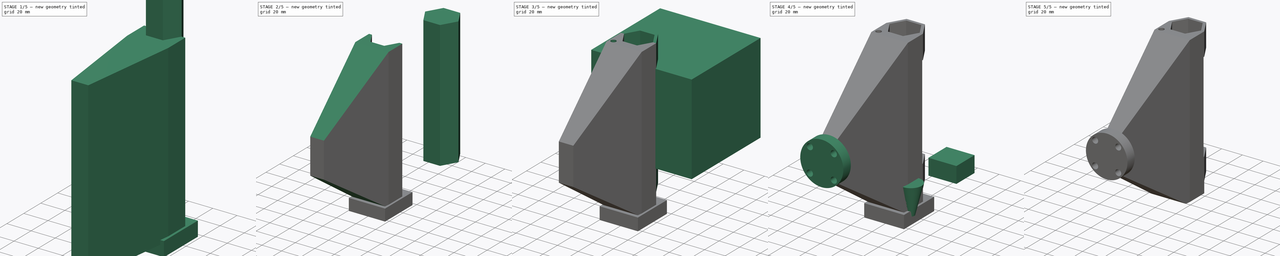
[diagram: build sequence overview — one tinted view per stage of 5, left to right]
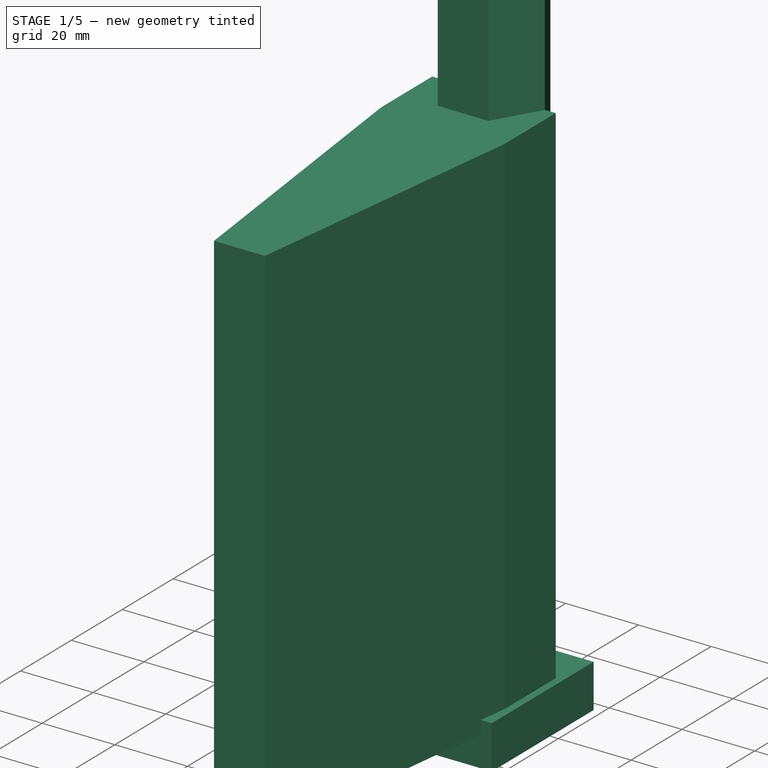
[diagram: stage 1 of 5 — iso view after this stage's code; geometry added in this stage tinted green]
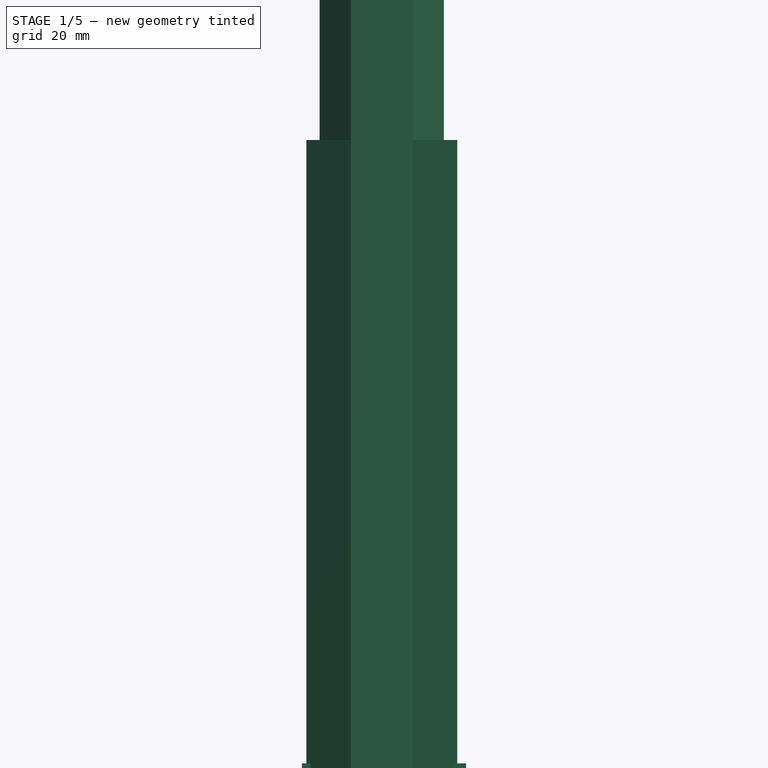
[diagram: stage 1 of 5 — front view after this stage's code; geometry added in this stage tinted green]
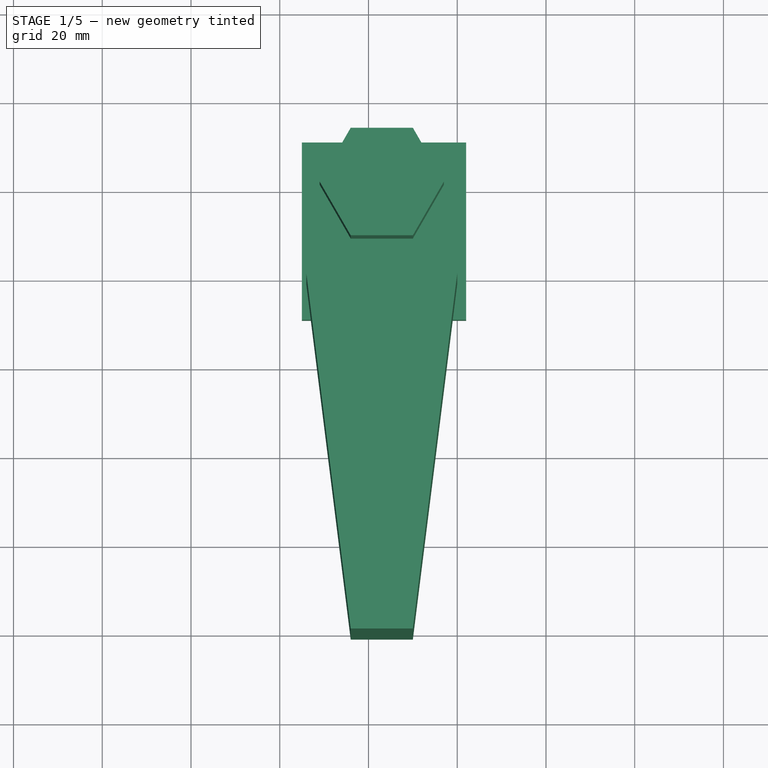
[diagram: stage 1 of 5 — top view after this stage's code; geometry added in this stage tinted green]
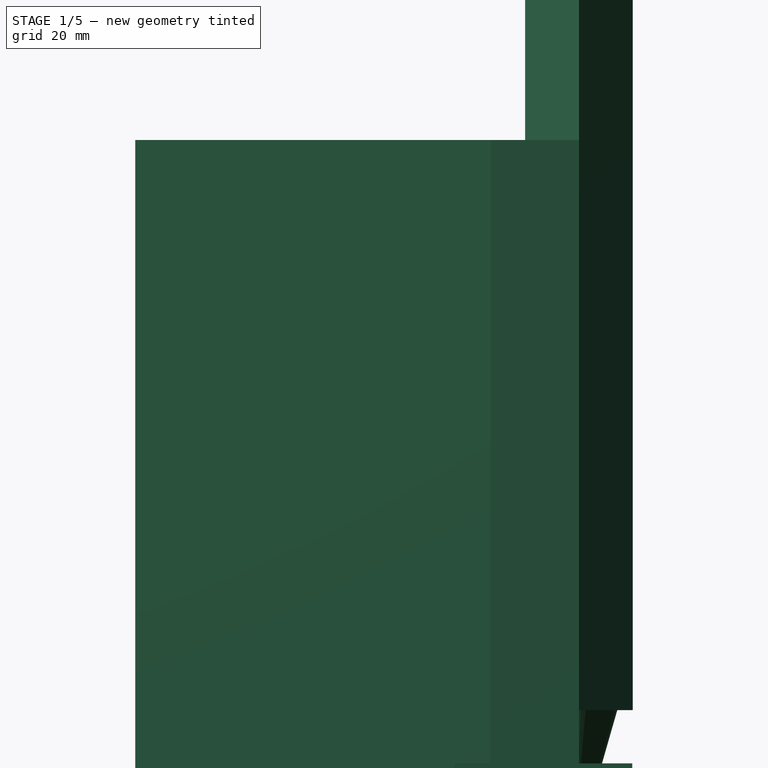
[diagram: stage 1 of 5 — right view after this stage's code; geometry added in this stage tinted green]
FCSTD DOCUMENT  (FreeCAD 0.17R13541 (Git))
Label: Herramienta Rotulador_v5
License: All rights reserved
LicenseURL: http://en.wikipedia.org/wiki/All_rights_reserved
objects: Part::Cut×8, Part::Box×4, Part::Chamfer×3, Part::Cone×3, Part::Prism×3, Part::MultiFuse×3, PartDesign::FeatureBase×1, Sketcher::SketchObject×1, PartDesign::Pocket×1, PartDesign::Body×1, Part::Cylinder×1
note: 30 computed .brp shape members not serialized (recipe doc carries the construction recipe); baked Part::Feature solids carry a one-line shape summary decoded from their .brp

FEATURE [Part::Box] Box  label="Cubo base"
  AttacherType = Attacher::AttachEngine3D
  Height = 144
  Length = 34
  Placement = pos=(-34,-61,-135.5) rot=(0,0,1;0rad)
  Width = 100
FEATURE [Part::Chamfer] Chamfer
  Base = -> Box
  Edges = 2 edges: [Edge1 r1=80 r2=10,Edge5 r1=80 r2=10]
FEATURE [Part::Prism] Prism002  label="hueco rotulador003"
  AttacherType = Attacher::AttachEngine3D
  Circumradius = 14
  Height = 171
  Placement = pos=(-17,39,-120) rot=(0,0,1;0rad)
  Polygon = 6
FEATURE [Part::Cone] Cone002  label="Punta int001"
  Angle = 360
  AttacherType = Attacher::AttachEngine3D
  Height = 27
  Placement = pos=(-17,37.5,-144) rot=(0,0,1;0rad)
  Radius1 = 3.25
  Radius2 = 11
FEATURE [Part::Box] Box003  label="Cubo002"
  AttacherType = Attacher::AttachEngine3D
  Height = 12
  Length = 37
  Placement = pos=(-35,11,-144) rot=(0,0,1;0rad)
  Width = 40
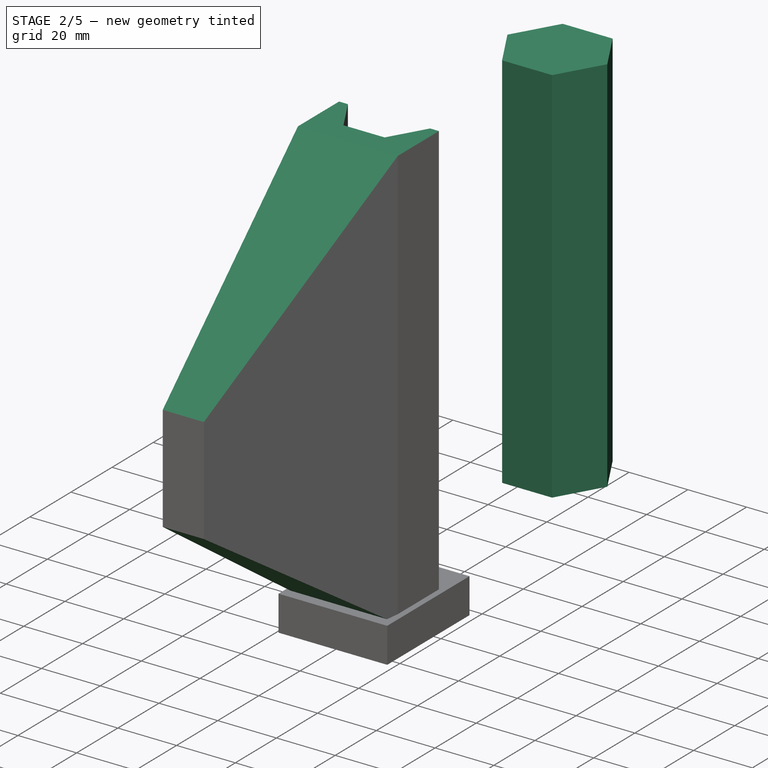
[diagram: stage 2 of 5 — iso view after this stage's code; geometry added in this stage tinted green]
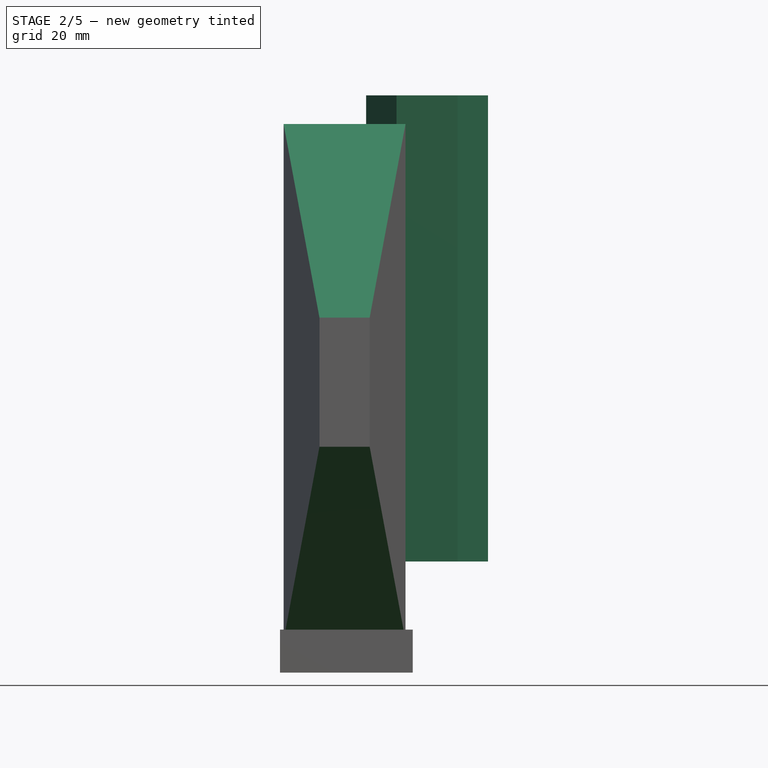
[diagram: stage 2 of 5 — front view after this stage's code; geometry added in this stage tinted green]
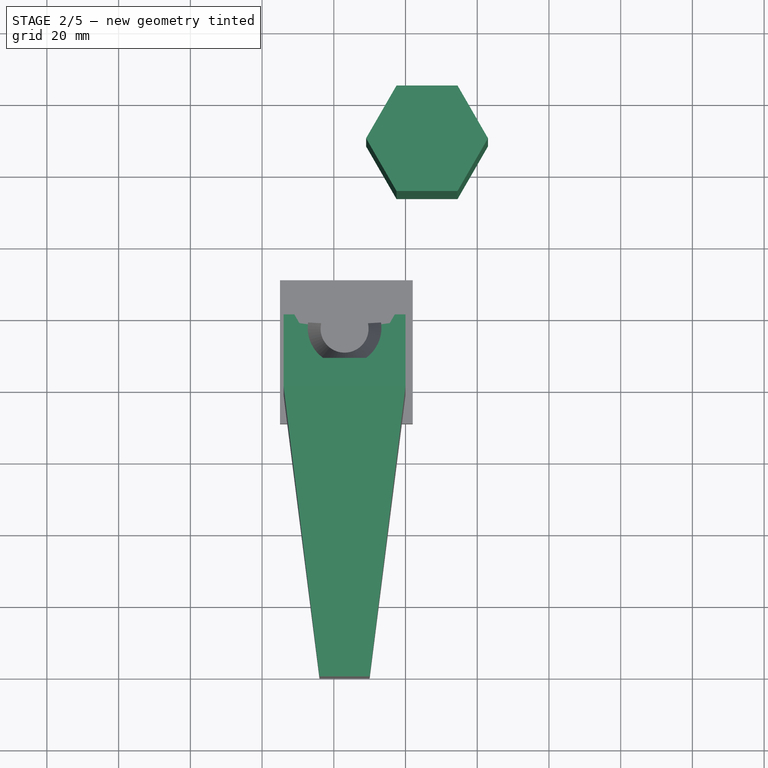
[diagram: stage 2 of 5 — top view after this stage's code; geometry added in this stage tinted green]
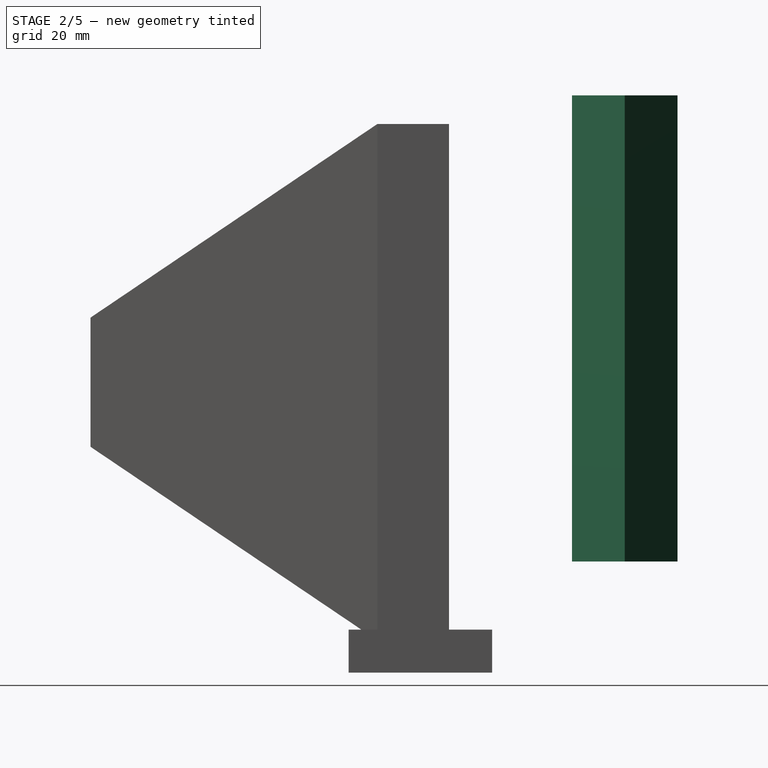
[diagram: stage 2 of 5 — right view after this stage's code; geometry added in this stage tinted green]
FEATURE [Part::Chamfer] Chamfer001
  Base = -> Chamfer
  Edges = 1 edges: [Edge14 r1=80 r2=54]
FEATURE [Part::Chamfer] Chamfer002
  Base = -> Chamfer001
  Edges = 1 edges: [Edge6 r1=54 r2=80]
FEATURE [Part::Prism] Prism  label="Carcasa"
  AttacherType = Attacher::AttachEngine3D
  Circumradius = 17
  Height = 130
  Placement = pos=(6,88,-113) rot=(0,0,1;0rad)
  Polygon = 6
FEATURE [Part::Prism] Prism001  label="hueco rotulador002"
  AttacherType = Attacher::AttachEngine3D
  Circumradius = 14
  Height = 130
  Placement = pos=(6,88,-113) rot=(0,0,1;0rad)
  Polygon = 6
FEATURE [Part::Cut] Cut  label="sujeción"
  Base = -> Chamfer002
  Placement = pos=(0,0,0.5) rot=(0,0,1;0rad)
  Tool = -> Prism002
FEATURE [Part::Cut] Cut005  label="sijeción"
  Base = -> Cut
  Tool = -> Cone002
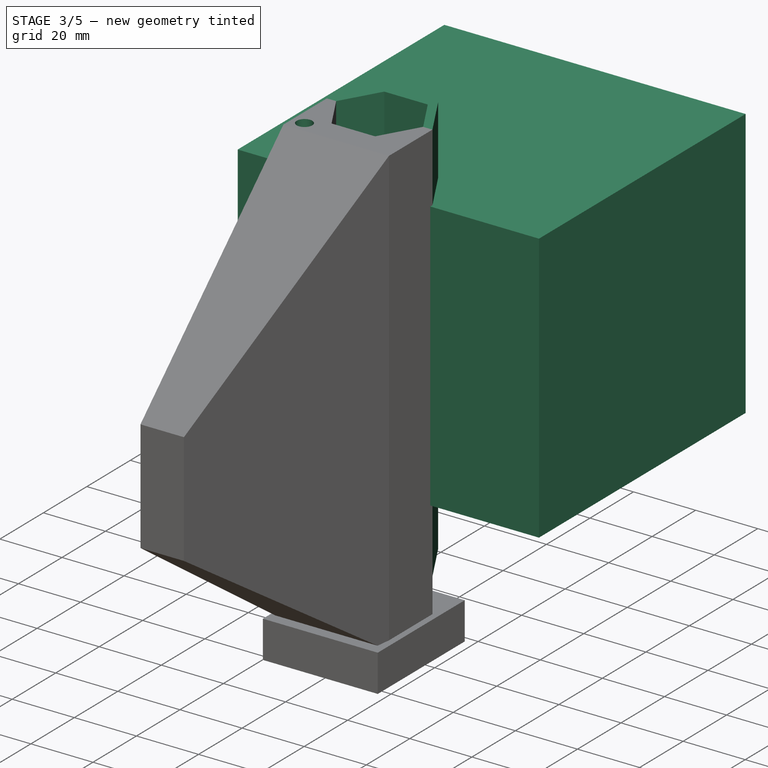
[diagram: stage 3 of 5 — iso view after this stage's code; geometry added in this stage tinted green]
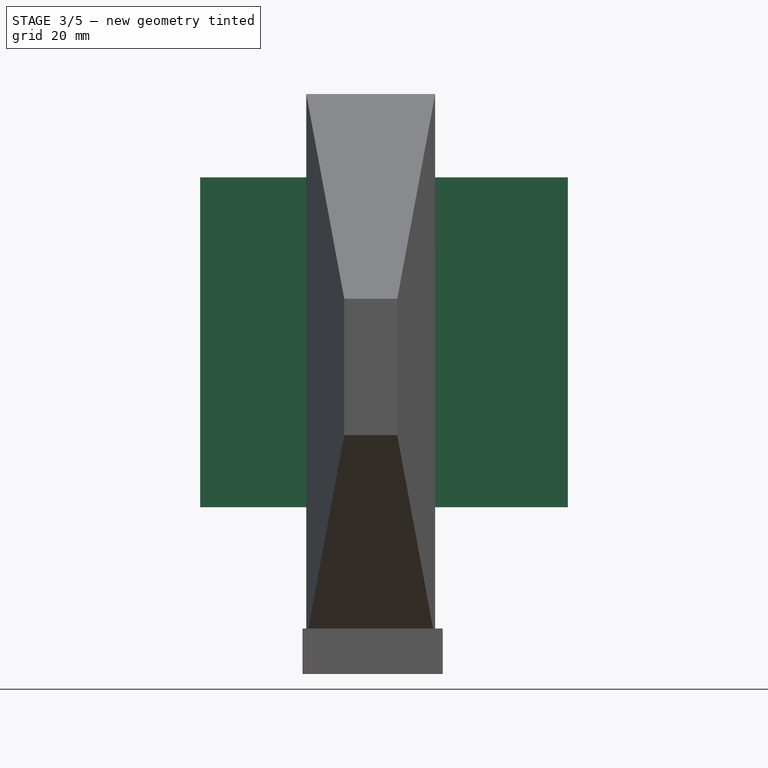
[diagram: stage 3 of 5 — front view after this stage's code; geometry added in this stage tinted green]
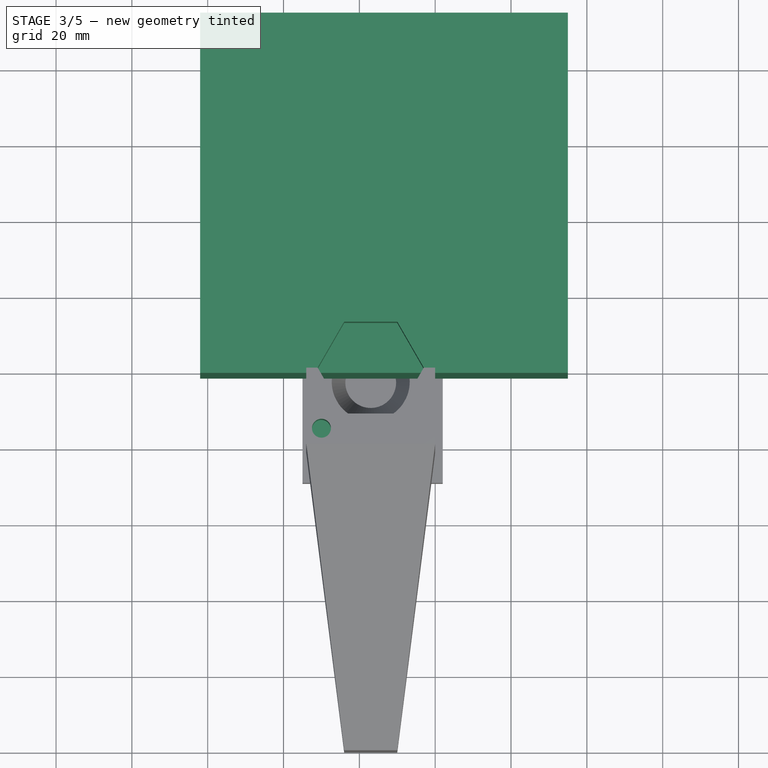
[diagram: stage 3 of 5 — top view after this stage's code; geometry added in this stage tinted green]
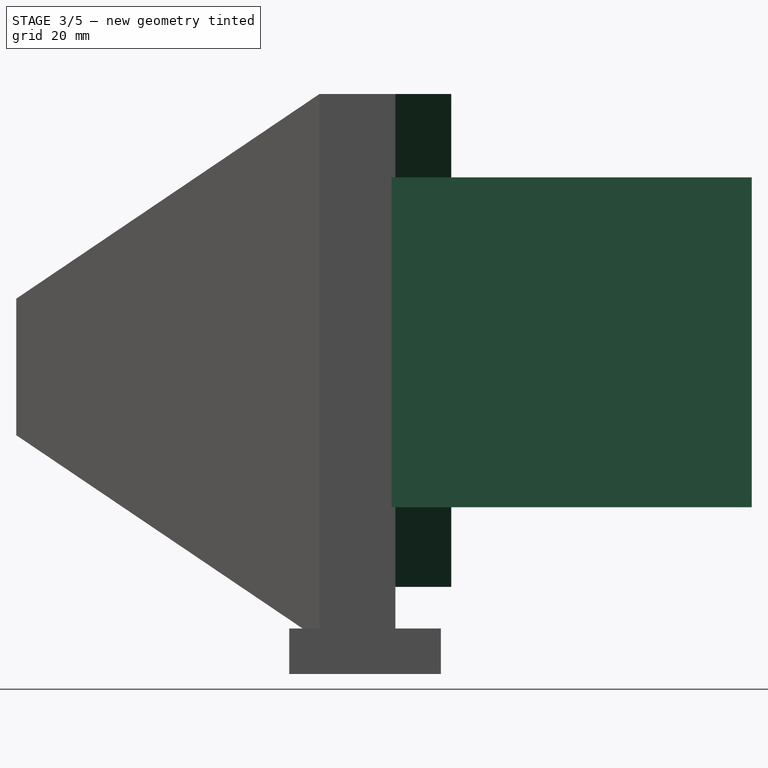
[diagram: stage 3 of 5 — right view after this stage's code; geometry added in this stage tinted green]
FEATURE [PartDesign::Body] Body  label="Brida"
  Group = -> [BaseFeature,Sketch012,Pocket]
  Origin = -> Origin
  Placement = pos=(-17,-61,-62.5) rot=(1,0,0;1.5708rad)
  Tip = -> Pocket
FEATURE [Part::Cylinder] Cylinder005  label="Cilindro001"
  Angle = 360
  AttacherType = Attacher::AttachEngine3D
  Height = 20
  Placement = pos=(-30,23,-9.5) rot=(0,0,1;0rad)
  Radius = 2.5
FEATURE [Part::Cut] Cut003  label="carcasa"
  Base = -> Prism
  Placement = pos=(-23,-49,-8) rot=(0,0,1;0rad)
  Tool = -> Prism001
FEATURE [Part::Box] Box002  label="Cubo001"
  AttacherType = Attacher::AttachEngine3D
  Height = 87
  Length = 97
  Placement = pos=(-62,38,-100) rot=(0,0,1;0rad)
  Width = 95
FEATURE [Part::MultiFuse] Fusion  label="carcasa/sujeción"
  Shapes = -> [Cut005,Cut003]
FEATURE [Part::Cut] Cut006  label="carcasa/sujeción001"
  Base = -> Fusion
  Tool = -> Cylinder005
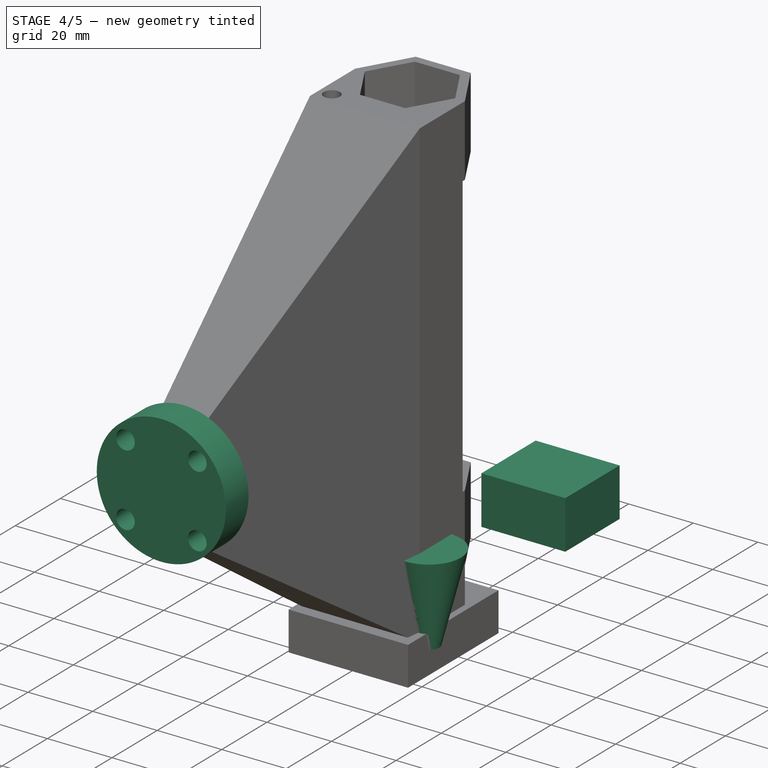
[diagram: stage 4 of 5 — iso view after this stage's code; geometry added in this stage tinted green]
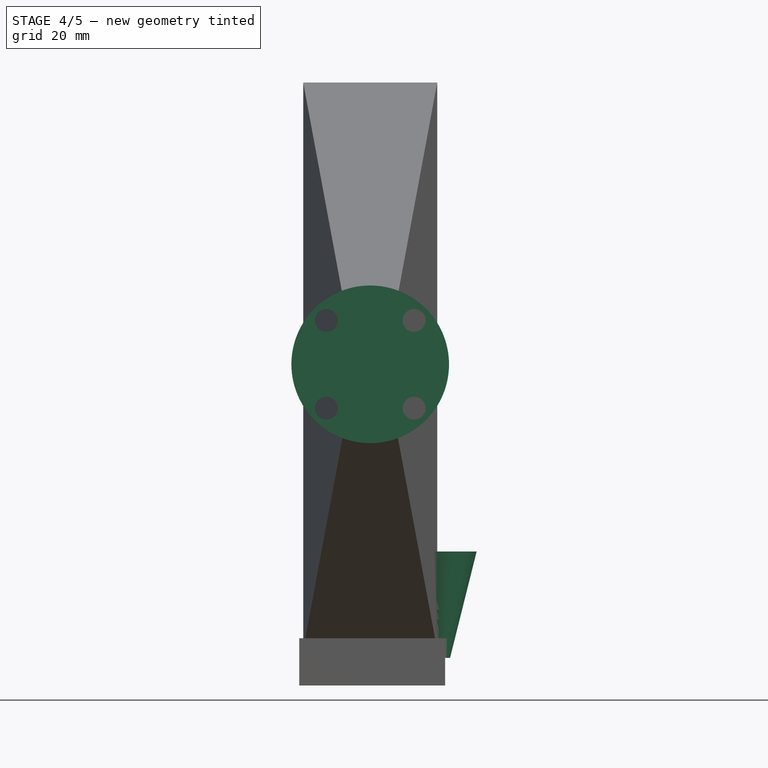
[diagram: stage 4 of 5 — front view after this stage's code; geometry added in this stage tinted green]
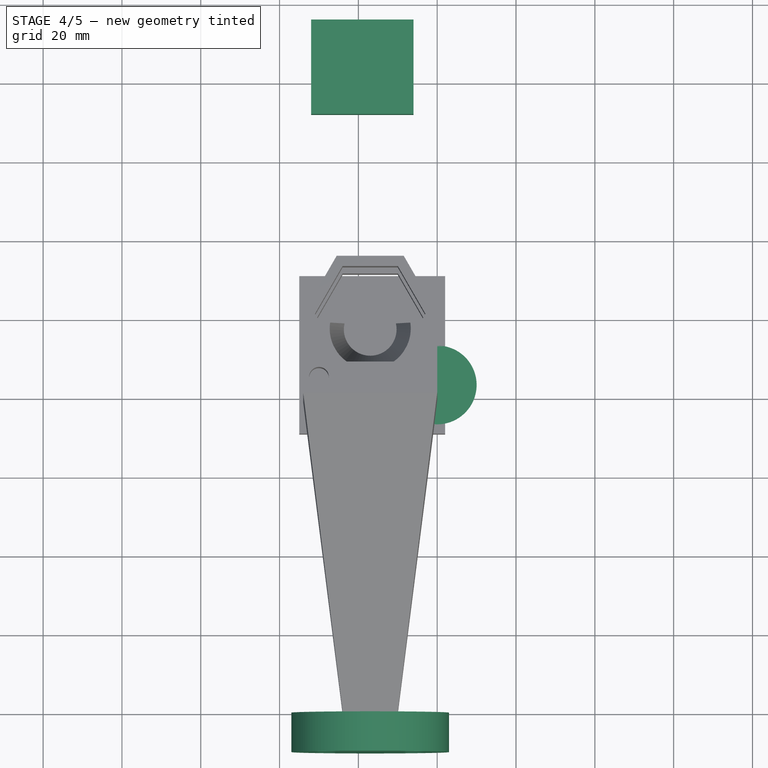
[diagram: stage 4 of 5 — top view after this stage's code; geometry added in this stage tinted green]
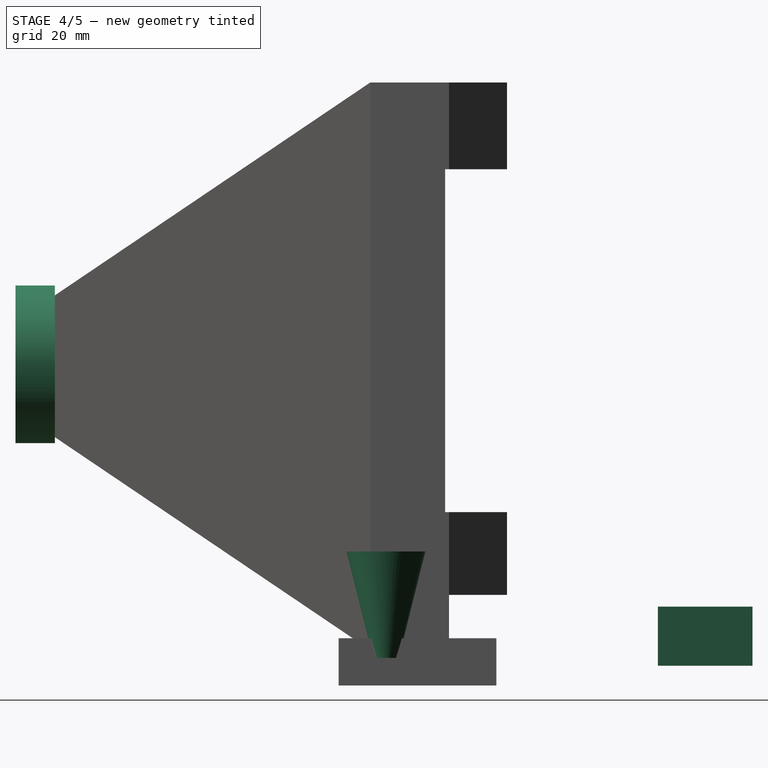
[diagram: stage 4 of 5 — right view after this stage's code; geometry added in this stage tinted green]
FEATURE [Part::Cone] Cone001  label="Punta int"
  Angle = 360
  AttacherType = Attacher::AttachEngine3D
  Height = 27
  Placement = pos=(0,23,-137) rot=(0,0,1;0rad)
  Radius1 = 3.25
  Radius2 = 10
FEATURE [PartDesign::FeatureBase] BaseFeature
FEATURE [Sketcher::SketchObject] Sketch012
  MapMode = 5
  Placement = pos=(0,0,10) rot=(0,0,1;0rad)
  Support = -> [BaseFeature]
  sketch-geometry (9):
    g0: Circle [constr] CenterX=0 CenterY=0 CenterZ=0 NormalX=0 NormalY=0 NormalZ=1 AngleXU=0 Radius=15.75
    g1: Circle CenterX=-11.1369 CenterY=11.1369 CenterZ=0 NormalX=0 NormalY=0 NormalZ=1 AngleXU=0 Radius=2.9
    g2: Circle CenterX=11.1369 CenterY=11.1369 CenterZ=0 NormalX=0 NormalY=0 NormalZ=1 AngleXU=0 Radius=2.9
    g3: Circle CenterX=11.1408 CenterY=-11.1331 CenterZ=0 NormalX=0 NormalY=0 NormalZ=1 AngleXU=0 Radius=2.9
    g4: Circle CenterX=-11.1369 CenterY=-11.1369 CenterZ=0 NormalX=0 NormalY=0 NormalZ=1 AngleXU=0 Radius=2.9
    g5: LineSegment [constr] StartX=-11.1292 StartY=11.1369 StartZ=0 EndX=11.1408 EndY=11.1369 EndZ=0
    g6: LineSegment [constr] StartX=11.1408 StartY=11.1369 StartZ=0 EndX=11.1408 EndY=-11.1331 EndZ=0
    g7: LineSegment [constr] StartX=11.1408 StartY=-11.1331 StartZ=0 EndX=-11.1292 EndY=-11.1331 EndZ=0
    g8: LineSegment [constr] StartX=-11.1292 StartY=-11.1331 StartZ=0 EndX=-11.1292 EndY=11.1369 EndZ=0
  constraints (21):
    c: Coincident(g0,g-1)
    c: Radius(g0) = 15.75
    c: PointOnObject(g1,g0)
    c: PointOnObject(g3,g0)
    c: Radius(g1) = 2.9
    c: Equal(g1,g4)
    c: Equal(g4,g3)
    c: Equal(g3,g2)
    c: Coincident(g5,g6)
    c: Coincident(g6,g7)
    c: Coincident(g7,g8)
    c: Coincident(g8,g5)
    c: Horizontal(g5)
    c: Horizontal(g7)
    c: Vertical(g6)
    c: Vertical(g8)
    c: Coincident(g6,g3)
    c: Equal(g6,g7)
    c: Equal(g7,g8)
    c: Equal(g8,g5)
    c: DistanceX(g5,g5) = 22.27
FEATURE [PartDesign::Pocket] Pocket
  BaseFeature = -> BaseFeature
  Length = 11
  Length2 = 100
  Profile = -> Sketch012
  Type = 0
FEATURE [Part::Box] Box001  label="Cubo"
  AttacherType = Attacher::AttachEngine3D
  Height = 15
  Length = 26
  Placement = pos=(-32,92,-139) rot=(0,0,1;0rad)
  Width = 24
FEATURE [Part::Cut] Cut008  label="final+"
  Base = -> Cut006
  Tool = -> Box002
FEATURE [Part::MultiFuse] Fusion001  label="Final"
  Shapes = -> [Cut008,Body]
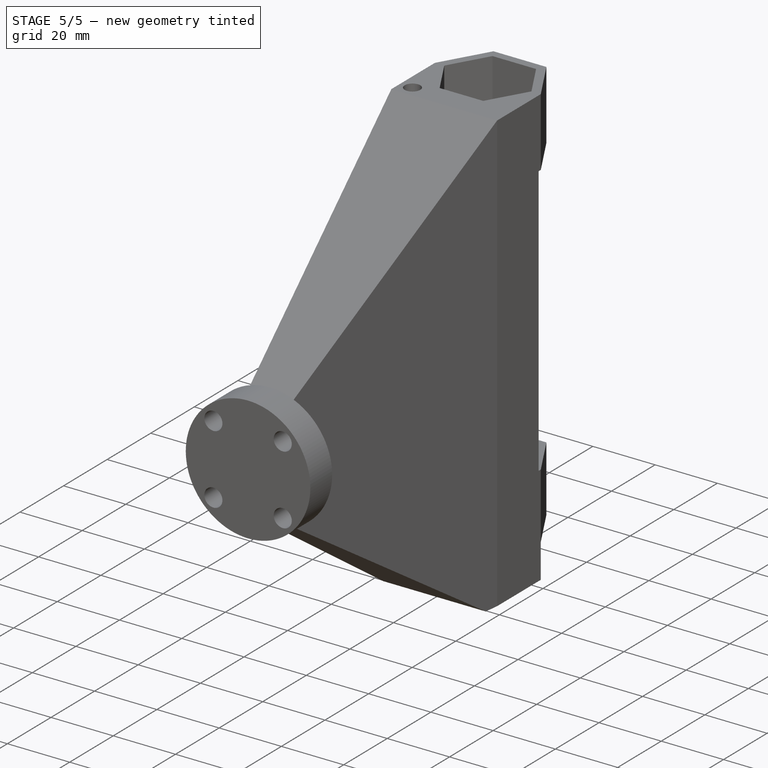
[diagram: stage 5 of 5 — iso view after this stage's code; geometry added in this stage tinted green]
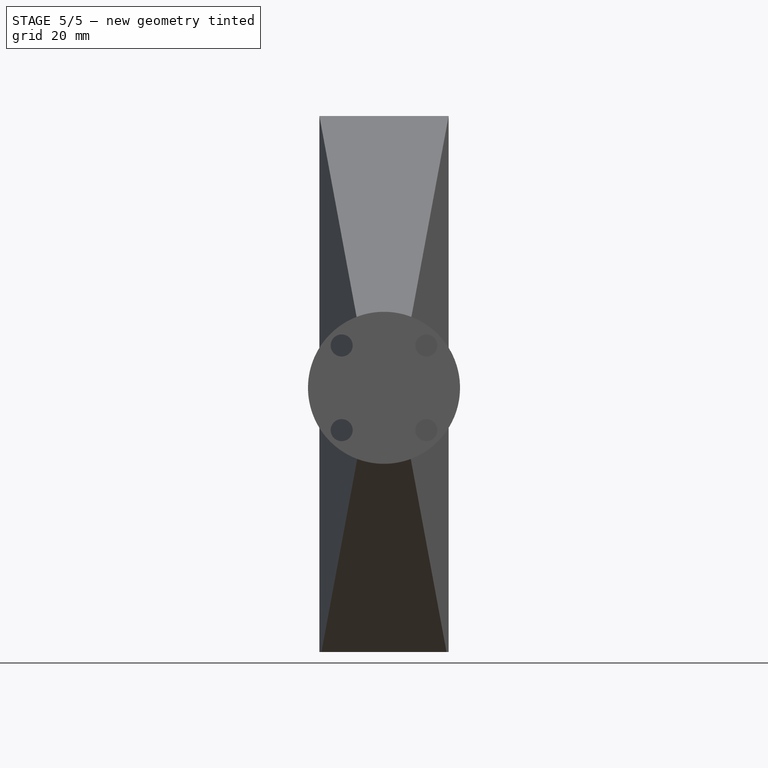
[diagram: stage 5 of 5 — front view after this stage's code; geometry added in this stage tinted green]
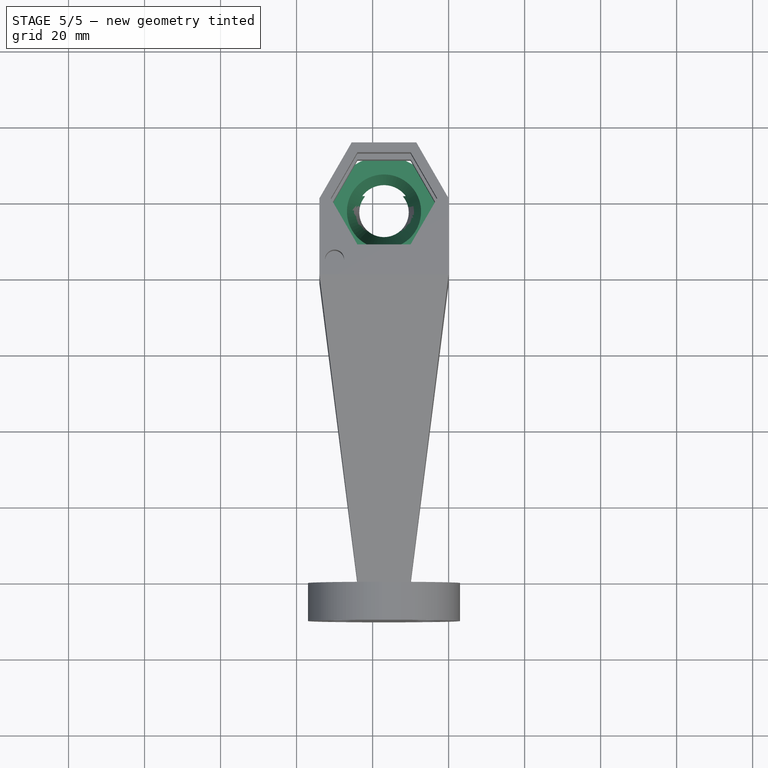
[diagram: stage 5 of 5 — top view after this stage's code; geometry added in this stage tinted green]
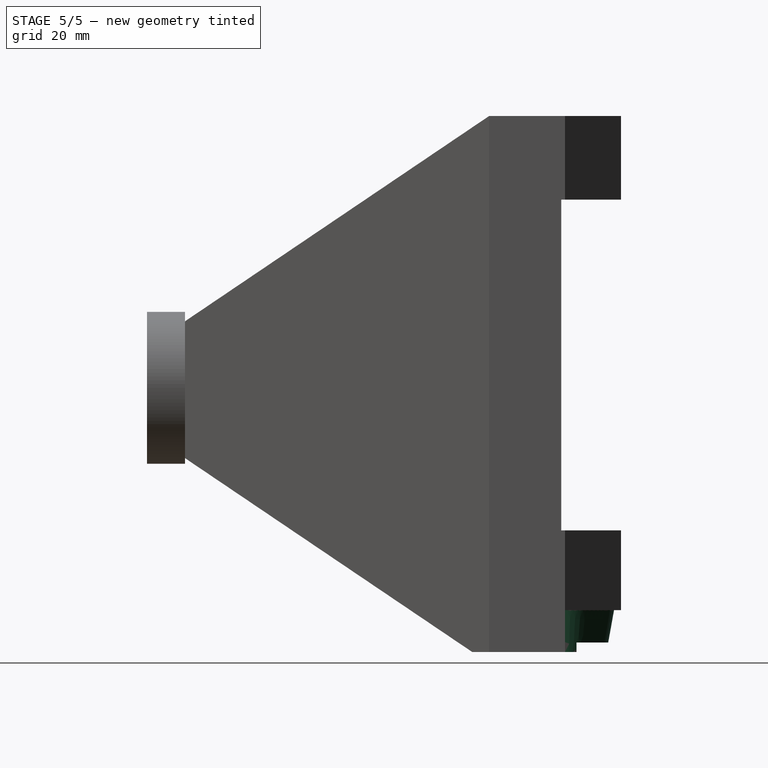
[diagram: stage 5 of 5 — right view after this stage's code; geometry added in this stage tinted green]
FEATURE [Part::Cone] Cone  label="Punta ext"
  Angle = 360
  AttacherType = Attacher::AttachEngine3D
  Height = 25
  Placement = pos=(0,23,-136) rot=(0,0,1;0rad)
  Radius1 = 10
  Radius2 = 14.5
FEATURE [Part::Cut] Cut002  label="Punta"
  Base = -> Cone
  Placement = pos=(-18,64.75,-2.5) rot=(0,0,1;0rad)
  Tool = -> Cone001
FEATURE [Part::Cut] Cut007  label="punta"
  Base = -> Cut002
  Placement = pos=(1,-50,-5.5) rot=(0,0,1;0rad)
  Tool = -> Box001
FEATURE [Part::MultiFuse] Fusion002  label="Finall"
  Shapes = -> [Fusion001,Cut007]
FEATURE [Part::Cut] Cut009  label="Final001"
  Base = -> Fusion002
  Tool = -> Box003
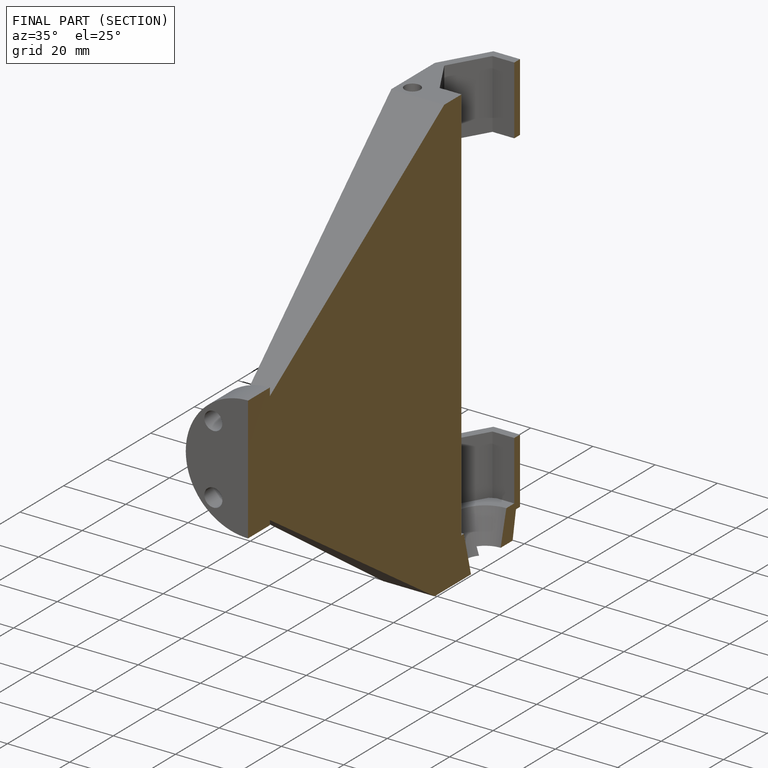
[diagram: finished part — half-section view (interior)]
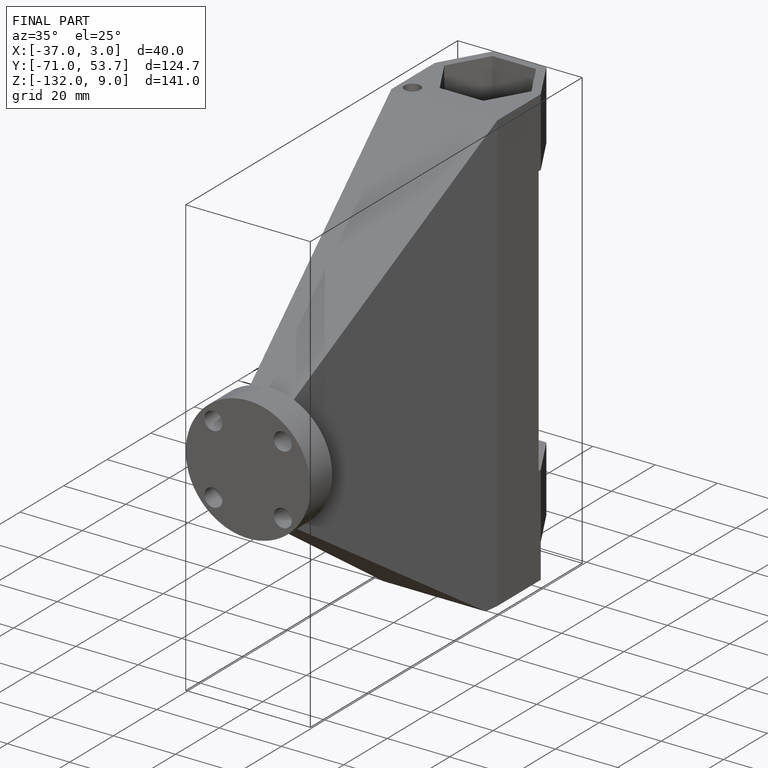
[diagram: finished part — iso view with bounding-box wireframe]
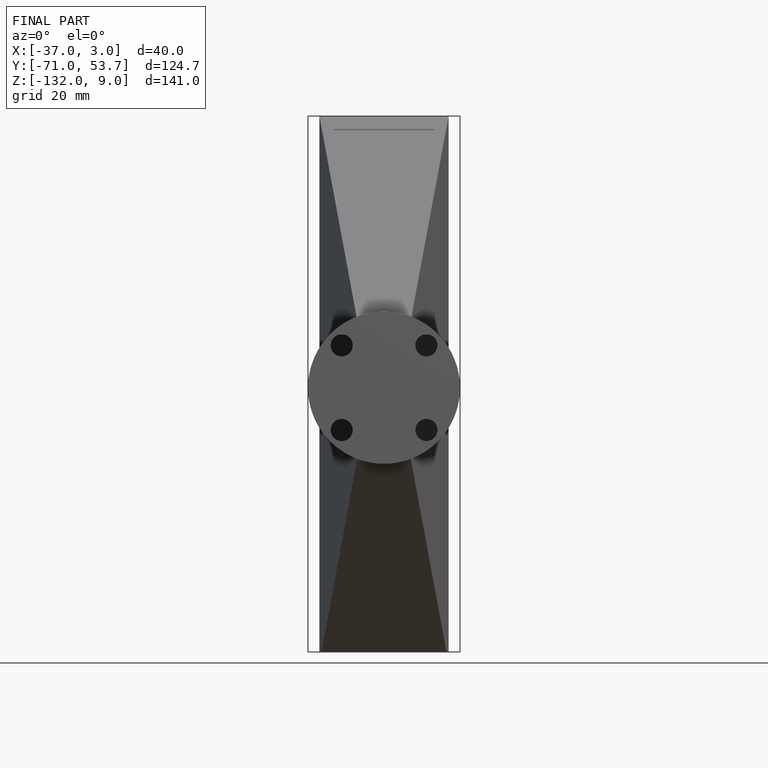
[diagram: finished part — front view with bounding-box wireframe]
